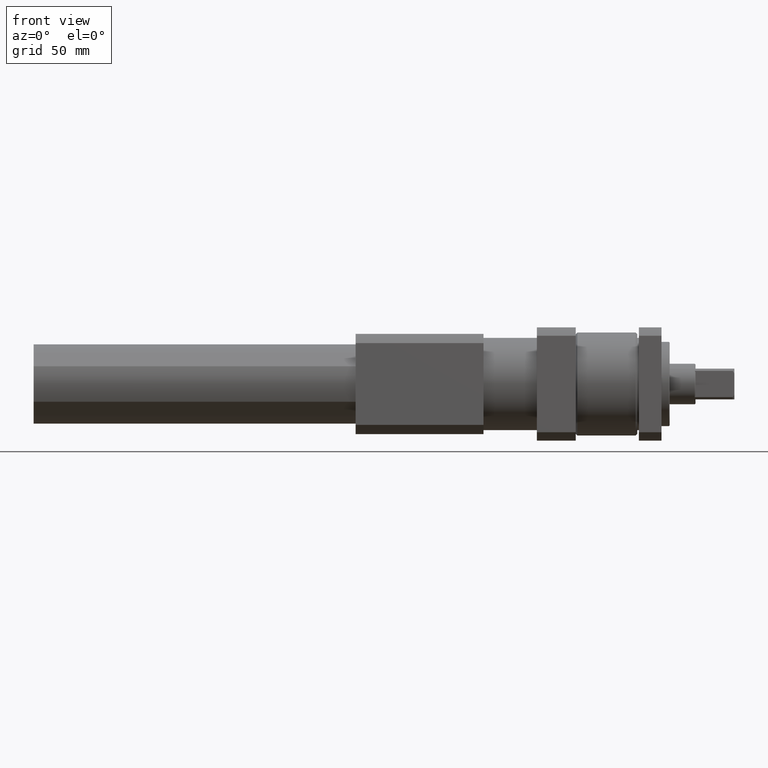
[diagram: clean part render]
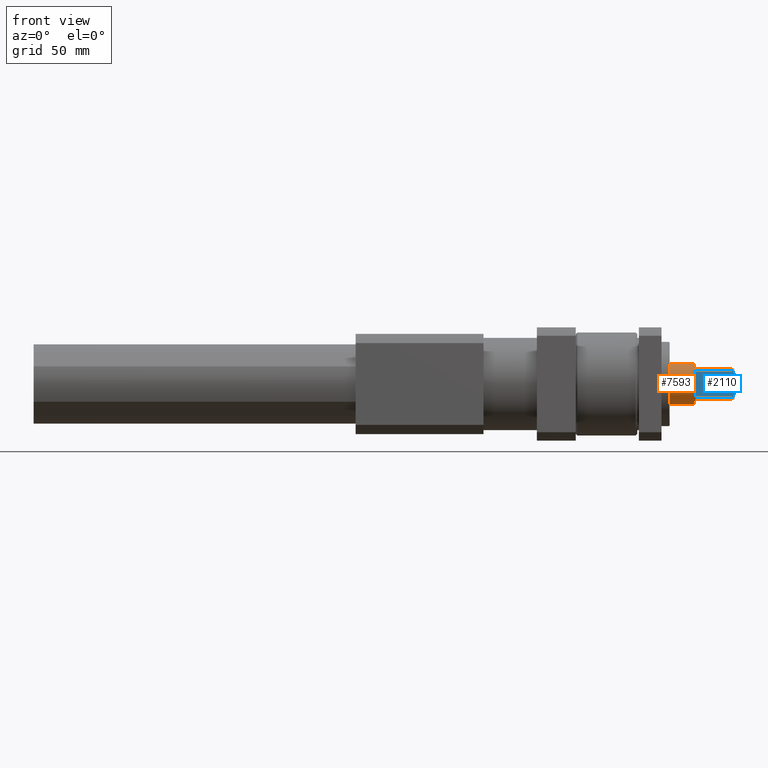
[diagram: same view with the hole feature highlighted: cylindrical wall and planar end face, labeled with their STEP entity ids]
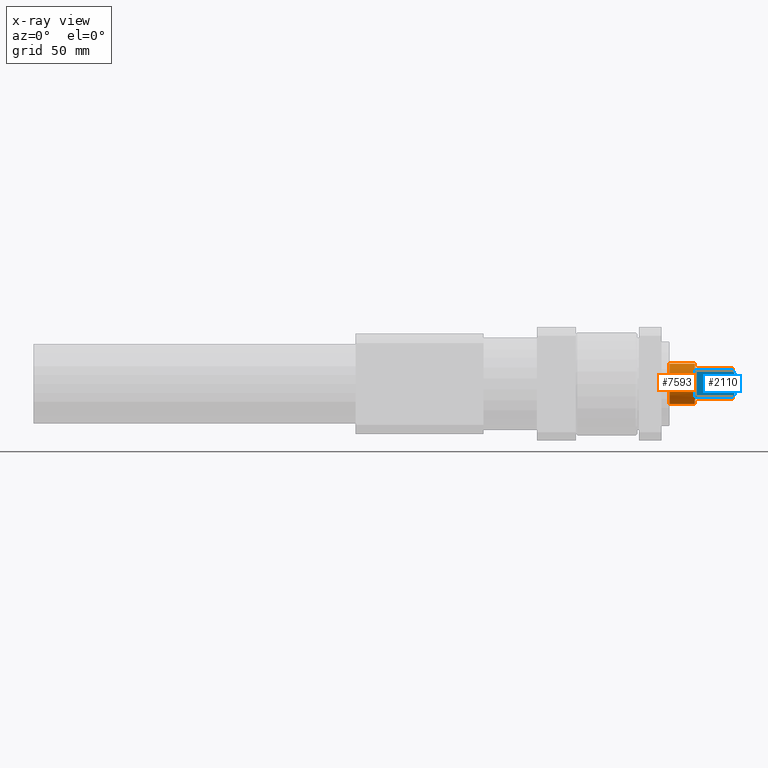
[diagram: x-ray of the same camera — body ghosted, the hole faces saturated]
A machine part, front view. The highlighted faces form one hole feature of diameter 25 mm: the cylindrical wall (entity #7593, orange) and its adjacent planar end face (entity #2110, blue) — they share a circular edge in the B-rep.
The next image is the same camera in x-ray (body ghosted, the hole faces saturated) — the bore reads through the body.
Wall:
#142 = EDGE_CURVE ( 'NONE', #292, #2497, #6185, .T. ) ;
#158 = VECTOR ( 'NONE', #6506, 1000.000000000000000 ) ;
#292 = VERTEX_POINT ( 'NONE', #5202 ) ;
#623 = DIRECTION ( 'NONE',  ( -1.000000000000000000, -0.0000000000000000000, -0.0000000000000000000 ) ) ;
#646 = VERTEX_POINT ( 'NONE', #2017 ) ;
#655 = VERTEX_POINT ( 'NONE', #2545 ) ;
#664 = VECTOR ( 'NONE', #3535, 1000.000000000000000 ) ;
#718 = DIRECTION ( 'NONE',  ( -1.000000000000000000, 0.0000000000000000000, 0.0000000000000000000 ) ) ;
#749 = CARTESIAN_POINT ( 'NONE',  ( 45.00000000000000000, -9.500000000000001800, -8.124038404635960800 ) ) ;
#835 = DIRECTION ( 'NONE',  ( 1.000000000000000000, 0.0000000000000000000, 0.0000000000000000000 ) ) ;
#942 = EDGE_CURVE ( 'NONE', #4511, #8318, #2438, .T. ) ;
#949 = CARTESIAN_POINT ( 'NONE',  ( 20.49999999999999600, 0.0000000000000000000, 0.0000000000000000000 ) ) ;
#966 = DIRECTION ( 'NONE',  ( 0.0000000000000000000, 0.0000000000000000000, 1.000000000000000000 ) ) ;
#1049 = CARTESIAN_POINT ( 'NONE',  ( 43.99999999999998600, 8.124038404635964400, -9.499999999999998200 ) ) ;
#1133 = VECTOR ( 'NONE', #1968, 1000.000000000000000 ) ;
#1153 = EDGE_CURVE ( 'NONE', #4511, #8444, #4828, .T. ) ;
#1162 = EDGE_CURVE ( 'NONE', #8035, #4754, #6686, .T. ) ;
#1287 = CARTESIAN_POINT ( 'NONE',  ( 43.99999999999998600, 0.0000000000000000000, 0.0000000000000000000 ) ) ;
#1300 = DIRECTION ( 'NONE',  ( -1.000000000000000000, 0.0000000000000000000, 0.0000000000000000000 ) ) ;
#1342 = CARTESIAN_POINT ( 'NONE',  ( 20.49999999999999600, -9.500000000000001800, -8.124038404635960800 ) ) ;
#1514 = EDGE_CURVE ( 'NONE', #2526, #2497, #2428, .T. ) ;
#1530 = CIRCLE ( 'NONE', #6971, 12.50000000000000000 ) ;
#1539 = CARTESIAN_POINT ( 'NONE',  ( 20.49999999999999600, 0.0000000000000000000, 0.0000000000000000000 ) ) ;
#1579 = CARTESIAN_POINT ( 'NONE',  ( 43.99999999999998600, 9.499999999999998200, -8.124038404635966200 ) ) ;
#1627 = LINE ( 'NONE', #6226, #4880 ) ;
#1640 = DIRECTION ( 'NONE',  ( 0.0000000000000000000, 0.0000000000000000000, -1.000000000000000000 ) ) ;
#1739 = CARTESIAN_POINT ( 'NONE',  ( 43.99999999999998600, -8.124038404635960800, 9.500000000000001800 ) ) ;
#1751 = ORIENTED_EDGE ( 'NONE', *, *, #6954, .F. ) ;
#1774 = AXIS2_PLACEMENT_3D ( 'NONE', #1287, #6168, #1984 ) ;
#1793 = ORIENTED_EDGE ( 'NONE', *, *, #2043, .T. ) ;
#1897 = ORIENTED_EDGE ( 'NONE', *, *, #8077, .T. ) ;
#1968 = DIRECTION ( 'NONE',  ( 1.000000000000000000, 0.0000000000000000000, 0.0000000000000000000 ) ) ;
#1984 = DIRECTION ( 'NONE',  ( 0.0000000000000000000, 0.0000000000000000000, -1.000000000000000000 ) ) ;
#2005 = DIRECTION ( 'NONE',  ( -1.000000000000000000, 0.0000000000000000000, 0.0000000000000000000 ) ) ;
#2009 = ORIENTED_EDGE ( 'NONE', *, *, #5088, .T. ) ;
#2017 = CARTESIAN_POINT ( 'NONE',  ( 20.49999999999999600, 8.124038404635964400, -9.499999999999998200 ) ) ;
#2043 = EDGE_CURVE ( 'NONE', #292, #5955, #8213, .T. ) ;
#2051 = ORIENTED_EDGE ( 'NONE', *, *, #142, .F. ) ;
#2060 = VECTOR ( 'NONE', #835, 1000.000000000000000 ) ;
#2192 = CARTESIAN_POINT ( 'NONE',  ( 20.49999999999999600, 8.124038404635960800, 9.500000000000001800 ) ) ;
#2220 = DIRECTION ( 'NONE',  ( 1.000000000000000000, 0.0000000000000000000, 0.0000000000000000000 ) ) ;
#2223 = DIRECTION ( 'NONE',  ( 0.0000000000000000000, 0.0000000000000000000, -1.000000000000000000 ) ) ;
#2287 = CIRCLE ( 'NONE', #6620, 12.50000000000000000 ) ;
#2354 = DIRECTION ( 'NONE',  ( -1.000000000000000000, -0.0000000000000000000, -0.0000000000000000000 ) ) ;
#2428 = CIRCLE ( 'NONE', #6736, 12.50000000000000000 ) ;
#2438 = LINE ( 'NONE', #5517, #158 ) ;
#2497 = VERTEX_POINT ( 'NONE', #1739 ) ;
#2526 = VERTEX_POINT ( 'NONE', #7324 ) ;
#2545 = CARTESIAN_POINT ( 'NONE',  ( 20.49999999999999600, -8.124038404635960800, -9.500000000000001800 ) ) ;
#2718 = DIRECTION ( 'NONE',  ( 0.0000000000000000000, 0.0000000000000000000, -1.000000000000000000 ) ) ;
#2814 = DIRECTION ( 'NONE',  ( 0.0000000000000000000, 1.776356839400250500E-015, -1.000000000000000000 ) ) ;
#2905 = CARTESIAN_POINT ( 'NONE',  ( 5.000000000000000000, 0.0000000000000000000, -12.50000000000000000 ) ) ;
#2941 = DIRECTION ( 'NONE',  ( 1.000000000000000000, 0.0000000000000000000, 0.0000000000000000000 ) ) ;
#3174 = ORIENTED_EDGE ( 'NONE', *, *, #7081, .F. ) ;
#3199 = VERTEX_POINT ( 'NONE', #7893 ) ;
#3468 = DIRECTION ( 'NONE',  ( -1.000000000000000000, 0.0000000000000000000, 0.0000000000000000000 ) ) ;
#3514 = ORIENTED_EDGE ( 'NONE', *, *, #8670, .T. ) ;
#3535 = DIRECTION ( 'NONE',  ( 1.000000000000000000, 0.0000000000000000000, 0.0000000000000000000 ) ) ;
#3613 = AXIS2_PLACEMENT_3D ( 'NONE', #4377, #1300, #5251 ) ;
#3675 = EDGE_CURVE ( 'NONE', #646, #8444, #4349, .T. ) ;
#3770 = EDGE_CURVE ( 'NONE', #4651, #8517, #5787, .T. ) ;
#3871 = DIRECTION ( 'NONE',  ( -1.000000000000000000, 0.0000000000000000000, 0.0000000000000000000 ) ) ;
#3930 = CARTESIAN_POINT ( 'NONE',  ( 45.00000000000000000, -8.124038404635960800, 9.500000000000001800 ) ) ;
#3940 = ORIENTED_EDGE ( 'NONE', *, *, #1153, .T. ) ;
#4149 = CARTESIAN_POINT ( 'NONE',  ( 43.99999999999998600, 0.0000000000000000000, 0.0000000000000000000 ) ) ;
#4151 = ORIENTED_EDGE ( 'NONE', *, *, #942, .F. ) ;
#4187 = CARTESIAN_POINT ( 'NONE',  ( 20.49999999999999600, 0.0000000000000000000, 0.0000000000000000000 ) ) ;
#4349 = LINE ( 'NONE', #7748, #664 ) ;
#4368 = ORIENTED_EDGE ( 'NONE', *, *, #5620, .T. ) ;
#4377 = CARTESIAN_POINT ( 'NONE',  ( 43.99999999999998600, 0.0000000000000000000, 0.0000000000000000000 ) ) ;
#4380 = ORIENTED_EDGE ( 'NONE', *, *, #3770, .F. ) ;
#4389 = VERTEX_POINT ( 'NONE', #6359 ) ;
#4511 = VERTEX_POINT ( 'NONE', #1579 ) ;
#4532 = CIRCLE ( 'NONE', #1774, 12.50000000000000000 ) ;
#4539 = CIRCLE ( 'NONE', #8872, 12.50000000000000000 ) ;
#4598 = EDGE_LOOP ( 'NONE', ( #6930 ) ) ;
#4648 = CARTESIAN_POINT ( 'NONE',  ( 20.49999999999999600, 9.499999999999998200, 8.124038404635966200 ) ) ;
#4651 = VERTEX_POINT ( 'NONE', #4648 ) ;
#4735 = AXIS2_PLACEMENT_3D ( 'NONE', #1539, #6405, #2223 ) ;
#4754 = VERTEX_POINT ( 'NONE', #8266 ) ;
#4828 = CIRCLE ( 'NONE', #3613, 12.50000000000000000 ) ;
#4874 = CARTESIAN_POINT ( 'NONE',  ( 43.99999999999998600, 0.0000000000000000000, 0.0000000000000000000 ) ) ;
#4880 = VECTOR ( 'NONE', #6942, 1000.000000000000000 ) ;
#4985 = AXIS2_PLACEMENT_3D ( 'NONE', #4187, #3468, #2814 ) ;
#5042 = EDGE_LOOP ( 'NONE', ( #5984, #2009, #1751, #6147, #2051, #1793, #3174, #3514, #4380, #4368, #4151, #3940, #8842, #7750, #6941, #1897 ) ) ;
#5059 = CARTESIAN_POINT ( 'NONE',  ( 20.49999999999999600, 9.499999999999998200, -8.124038404635966200 ) ) ;
#5088 = EDGE_CURVE ( 'NONE', #8035, #3199, #1530, .T. ) ;
#5202 = CARTESIAN_POINT ( 'NONE',  ( 20.49999999999999600, -8.124038404635960800, 9.500000000000001800 ) ) ;
#5228 = AXIS2_PLACEMENT_3D ( 'NONE', #8090, #3871, #8791 ) ;
#5247 = CARTESIAN_POINT ( 'NONE',  ( 43.99999999999998600, 9.499999999999998200, 8.124038404635966200 ) ) ;
#5251 = DIRECTION ( 'NONE',  ( 0.0000000000000000000, -4.440892098500626200E-015, -1.000000000000000000 ) ) ;
#5286 = VERTEX_POINT ( 'NONE', #2905 ) ;
#5486 = CARTESIAN_POINT ( 'NONE',  ( 45.00000000000000000, -8.124038404635960800, -9.500000000000001800 ) ) ;
#5517 = CARTESIAN_POINT ( 'NONE',  ( 45.00000000000000000, 9.499999999999998200, -8.124038404635966200 ) ) ;
#5573 = DIRECTION ( 'NONE',  ( 0.0000000000000000000, 0.0000000000000000000, -1.000000000000000000 ) ) ;
#5620 = EDGE_CURVE ( 'NONE', #4651, #8318, #5793, .T. ) ;
#5662 = EDGE_CURVE ( 'NONE', #5286, #5286, #2287, .T. ) ;
#5787 = LINE ( 'NONE', #7057, #2060 ) ;
#5793 = CIRCLE ( 'NONE', #4735, 12.50000000000000000 ) ;
#5824 = DIRECTION ( 'NONE',  ( -1.000000000000000000, 0.0000000000000000000, 0.0000000000000000000 ) ) ;
#5846 = CARTESIAN_POINT ( 'NONE',  ( 45.00000000000000000, 0.0000000000000000000, 0.0000000000000000000 ) ) ;
#5955 = VERTEX_POINT ( 'NONE', #2192 ) ;
#5984 = ORIENTED_EDGE ( 'NONE', *, *, #1162, .F. ) ;
#6147 = ORIENTED_EDGE ( 'NONE', *, *, #1514, .T. ) ;
#6168 = DIRECTION ( 'NONE',  ( -1.000000000000000000, 0.0000000000000000000, 0.0000000000000000000 ) ) ;
#6185 = LINE ( 'NONE', #3930, #7389 ) ;
#6226 = CARTESIAN_POINT ( 'NONE',  ( 45.00000000000000000, 8.124038404635960800, 9.500000000000001800 ) ) ;
#6359 = CARTESIAN_POINT ( 'NONE',  ( 43.99999999999998600, 8.124038404635960800, 9.500000000000001800 ) ) ;
#6405 = DIRECTION ( 'NONE',  ( -1.000000000000000000, 0.0000000000000000000, 0.0000000000000000000 ) ) ;
#6506 = DIRECTION ( 'NONE',  ( -1.000000000000000000, -0.0000000000000000000, -0.0000000000000000000 ) ) ;
#6620 = AXIS2_PLACEMENT_3D ( 'NONE', #7153, #2941, #7853 ) ;
#6686 = LINE ( 'NONE', #749, #1133 ) ;
#6697 = DIRECTION ( 'NONE',  ( -1.000000000000000000, -0.0000000000000000000, -0.0000000000000000000 ) ) ;
#6722 = CARTESIAN_POINT ( 'NONE',  ( 45.00000000000000000, -9.500000000000001800, 8.124038404635960800 ) ) ;
#6736 = AXIS2_PLACEMENT_3D ( 'NONE', #4149, #2005, #2718 ) ;
#6930 = ORIENTED_EDGE ( 'NONE', *, *, #5662, .T. ) ;
#6941 = ORIENTED_EDGE ( 'NONE', *, *, #8022, .F. ) ;
#6942 = DIRECTION ( 'NONE',  ( -1.000000000000000000, -0.0000000000000000000, -0.0000000000000000000 ) ) ;
#6954 = EDGE_CURVE ( 'NONE', #2526, #3199, #7626, .T. ) ;
#6971 = AXIS2_PLACEMENT_3D ( 'NONE', #949, #5824, #1640 ) ;
#7057 = CARTESIAN_POINT ( 'NONE',  ( 45.00000000000000000, 9.499999999999998200, 8.124038404635966200 ) ) ;
#7068 = VECTOR ( 'NONE', #623, 1000.000000000000000 ) ;
#7081 = EDGE_CURVE ( 'NONE', #4389, #5955, #1627, .T. ) ;
#7153 = CARTESIAN_POINT ( 'NONE',  ( 5.000000000000000000, 0.0000000000000000000, 0.0000000000000000000 ) ) ;
#7324 = CARTESIAN_POINT ( 'NONE',  ( 43.99999999999998600, -9.500000000000001800, 8.124038404635960800 ) ) ;
#7389 = VECTOR ( 'NONE', #2220, 1000.000000000000000 ) ;
#7438 = VERTEX_POINT ( 'NONE', #7934 ) ;
#7593 = ADVANCED_FACE ( 'NONE', ( #9052, #7618 ), #8826, .T. ) ;
#7618 = FACE_OUTER_BOUND ( 'NONE', #5042, .T. ) ;
#7626 = LINE ( 'NONE', #6722, #7852 ) ;
#7631 = AXIS2_PLACEMENT_3D ( 'NONE', #5846, #2354, #966 ) ;
#7748 = CARTESIAN_POINT ( 'NONE',  ( 45.00000000000000000, 8.124038404635964400, -9.499999999999998200 ) ) ;
#7750 = ORIENTED_EDGE ( 'NONE', *, *, #8529, .T. ) ;
#7852 = VECTOR ( 'NONE', #6697, 1000.000000000000000 ) ;
#7853 = DIRECTION ( 'NONE',  ( 0.0000000000000000000, 0.0000000000000000000, -1.000000000000000000 ) ) ;
#7893 = CARTESIAN_POINT ( 'NONE',  ( 20.49999999999999600, -9.500000000000001800, 8.124038404635960800 ) ) ;
#7934 = CARTESIAN_POINT ( 'NONE',  ( 43.99999999999998600, -8.124038404635960800, -9.500000000000001800 ) ) ;
#8022 = EDGE_CURVE ( 'NONE', #7438, #655, #8720, .T. ) ;
#8035 = VERTEX_POINT ( 'NONE', #1342 ) ;
#8077 = EDGE_CURVE ( 'NONE', #7438, #4754, #4539, .T. ) ;
#8090 = CARTESIAN_POINT ( 'NONE',  ( 20.49999999999999600, 0.0000000000000000000, 0.0000000000000000000 ) ) ;
#8213 = CIRCLE ( 'NONE', #4985, 12.50000000000000000 ) ;
#8266 = CARTESIAN_POINT ( 'NONE',  ( 43.99999999999998600, -9.500000000000001800, -8.124038404635960800 ) ) ;
#8318 = VERTEX_POINT ( 'NONE', #5059 ) ;
#8444 = VERTEX_POINT ( 'NONE', #1049 ) ;
#8517 = VERTEX_POINT ( 'NONE', #5247 ) ;
#8529 = EDGE_CURVE ( 'NONE', #646, #655, #8922, .T. ) ;
#8670 = EDGE_CURVE ( 'NONE', #4389, #8517, #4532, .T. ) ;
#8720 = LINE ( 'NONE', #5486, #7068 ) ;
#8791 = DIRECTION ( 'NONE',  ( 0.0000000000000000000, 0.0000000000000000000, -1.000000000000000000 ) ) ;
#8826 = CYLINDRICAL_SURFACE ( 'NONE', #7631, 12.50000000000000000 ) ;
#8842 = ORIENTED_EDGE ( 'NONE', *, *, #3675, .F. ) ;
#8872 = AXIS2_PLACEMENT_3D ( 'NONE', #4874, #718, #5573 ) ;
#8922 = CIRCLE ( 'NONE', #5228, 12.50000000000000000 ) ;
#9052 = FACE_OUTER_BOUND ( 'NONE', #4598, .T. ) ;
End face:
#61 = ORIENTED_EDGE ( 'NONE', *, *, #419, .F. ) ;
#374 = CARTESIAN_POINT ( 'NONE',  ( 45.00000000000000000, -9.500000000000001800, 6.480740698407839100 ) ) ;
#386 = LINE ( 'NONE', #1684, #5292 ) ;
#419 = EDGE_CURVE ( 'NONE', #2531, #1195, #386, .T. ) ;
#451 = CARTESIAN_POINT ( 'NONE',  ( 44.68489063187587400, -9.500000000000001800, -7.039898656126723600 ) ) ;
#606 = CARTESIAN_POINT ( 'NONE',  ( 20.99999999999999600, -9.500000000000001800, -7.331439149307594300 ) ) ;
#749 = CARTESIAN_POINT ( 'NONE',  ( 45.00000000000000000, -9.500000000000001800, -8.124038404635960800 ) ) ;
#940 = B_SPLINE_CURVE_WITH_KNOTS ( 'NONE', 3,
 ( #6880, #1997, #3373, #8292 ),
 .UNSPECIFIED., .F., .F.,
 ( 4, 4 ),
 ( 0.0000000000000000000, 0.0009371305029434697400 ),
 .UNSPECIFIED. ) ;
#988 = EDGE_CURVE ( 'NONE', #1195, #4754, #6842, .T. ) ;
#1133 = VECTOR ( 'NONE', #1968, 1000.000000000000000 ) ;
#1162 = EDGE_CURVE ( 'NONE', #8035, #4754, #6686, .T. ) ;
#1195 = VERTEX_POINT ( 'NONE', #5310 ) ;
#1342 = CARTESIAN_POINT ( 'NONE',  ( 20.49999999999999600, -9.500000000000001800, -8.124038404635960800 ) ) ;
#1368 = CARTESIAN_POINT ( 'NONE',  ( 20.99999999999999600, -9.500000000000001800, 7.331439149307594300 ) ) ;
#1389 = EDGE_CURVE ( 'NONE', #3066, #8035, #2645, .T. ) ;
#1674 = CARTESIAN_POINT ( 'NONE',  ( 20.83712496312332300, -9.500000000000001800, -7.598030796965841400 ) ) ;
#1684 = CARTESIAN_POINT ( 'NONE',  ( 45.00000000000000000, -9.500000000000001800, 9.500000000000001800 ) ) ;
#1808 = EDGE_CURVE ( 'NONE', #2526, #2531, #7514, .T. ) ;
#1968 = DIRECTION ( 'NONE',  ( 1.000000000000000000, 0.0000000000000000000, 0.0000000000000000000 ) ) ;
#1997 = CARTESIAN_POINT ( 'NONE',  ( 20.67024316772480900, -9.500000000000001800, 7.862094837832319000 ) ) ;
#2061 = CARTESIAN_POINT ( 'NONE',  ( 44.34945560562017900, -9.500000000000001800, -7.586350760550011800 ) ) ;
#2110 = ADVANCED_FACE ( 'NONE', ( #7769 ), #4424, .T. ) ;
#2266 = CARTESIAN_POINT ( 'NONE',  ( 45.00000000000000000, -9.500000000000001800, -6.480740698407838200 ) ) ;
#2300 = CARTESIAN_POINT ( 'NONE',  ( 20.67024316772481300, -9.500000000000001800, -7.862094837832320800 ) ) ;
#2325 = DIRECTION ( 'NONE',  ( 0.0000000000000000000, 0.0000000000000000000, -1.000000000000000000 ) ) ;
#2347 = ORIENTED_EDGE ( 'NONE', *, *, #6954, .T. ) ;
#2389 = DIRECTION ( 'NONE',  ( 0.0000000000000000000, 0.0000000000000000000, -1.000000000000000000 ) ) ;
#2526 = VERTEX_POINT ( 'NONE', #7324 ) ;
#2531 = VERTEX_POINT ( 'NONE', #374 ) ;
#2645 = B_SPLINE_CURVE_WITH_KNOTS ( 'NONE', 3,
 ( #2727, #1674, #2300, #3273 ),
 .UNSPECIFIED., .F., .F.,
 ( 4, 4 ),
 ( 0.0000000000000000000, 0.0009371305029434693100 ),
 .UNSPECIFIED. ) ;
#2727 = CARTESIAN_POINT ( 'NONE',  ( 20.99999999999999600, -9.500000000000001800, -7.331439149307594300 ) ) ;
#2775 = LINE ( 'NONE', #4538, #6514 ) ;
#3066 = VERTEX_POINT ( 'NONE', #606 ) ;
#3199 = VERTEX_POINT ( 'NONE', #7893 ) ;
#3273 = CARTESIAN_POINT ( 'NONE',  ( 20.49999999999999600, -9.500000000000001800, -8.124038404635960800 ) ) ;
#3373 = CARTESIAN_POINT ( 'NONE',  ( 20.83712496312333000, -9.500000000000001800, 7.598030796965845800 ) ) ;
#3456 = CARTESIAN_POINT ( 'NONE',  ( 43.99999999999998600, -9.500000000000001800, -8.124038404635960800 ) ) ;
#3488 = EDGE_LOOP ( 'NONE', ( #2347, #4523, #6890, #8931, #4731, #8823, #61, #7237 ) ) ;
#3879 = CARTESIAN_POINT ( 'NONE',  ( 20.99999999999999600, -9.500000000000001800, 9.500000000000001800 ) ) ;
#4424 = PLANE ( 'NONE',  #8274 ) ;
#4523 = ORIENTED_EDGE ( 'NONE', *, *, #4766, .T. ) ;
#4538 = CARTESIAN_POINT ( 'NONE',  ( 20.99999999999999600, -9.500000000000001800, 9.500000000000001800 ) ) ;
#4547 = CARTESIAN_POINT ( 'NONE',  ( 43.99999999999998600, -9.500000000000001800, 8.124038404635960800 ) ) ;
#4731 = ORIENTED_EDGE ( 'NONE', *, *, #1162, .T. ) ;
#4754 = VERTEX_POINT ( 'NONE', #8266 ) ;
#4766 = EDGE_CURVE ( 'NONE', #3199, #4825, #940, .T. ) ;
#4825 = VERTEX_POINT ( 'NONE', #1368 ) ;
#5292 = VECTOR ( 'NONE', #2389, 1000.000000000000000 ) ;
#5310 = CARTESIAN_POINT ( 'NONE',  ( 45.00000000000000000, -9.500000000000001800, -6.480740698407838200 ) ) ;
#6268 = CARTESIAN_POINT ( 'NONE',  ( 44.34885021166005700, -9.500000000000001800, 7.587282246114778400 ) ) ;
#6514 = VECTOR ( 'NONE', #7658, 1000.000000000000000 ) ;
#6686 = LINE ( 'NONE', #749, #1133 ) ;
#6697 = DIRECTION ( 'NONE',  ( -1.000000000000000000, -0.0000000000000000000, -0.0000000000000000000 ) ) ;
#6722 = CARTESIAN_POINT ( 'NONE',  ( 45.00000000000000000, -9.500000000000001800, 8.124038404635960800 ) ) ;
#6842 = B_SPLINE_CURVE_WITH_KNOTS ( 'NONE', 3,
 ( #2266, #451, #2061, #3456 ),
 .UNSPECIFIED., .F., .F.,
 ( 4, 4 ),
 ( 0.03219691360408252100, 0.03414043145091366600 ),
 .UNSPECIFIED. ) ;
#6880 = CARTESIAN_POINT ( 'NONE',  ( 20.49999999999999600, -9.500000000000001800, 8.124038404635960800 ) ) ;
#6890 = ORIENTED_EDGE ( 'NONE', *, *, #9009, .T. ) ;
#6954 = EDGE_CURVE ( 'NONE', #2526, #3199, #7626, .T. ) ;
#7237 = ORIENTED_EDGE ( 'NONE', *, *, #1808, .F. ) ;
#7324 = CARTESIAN_POINT ( 'NONE',  ( 43.99999999999998600, -9.500000000000001800, 8.124038404635960800 ) ) ;
#7501 = CARTESIAN_POINT ( 'NONE',  ( 45.00000000000000000, -9.500000000000001800, 6.480740698407839100 ) ) ;
#7514 = B_SPLINE_CURVE_WITH_KNOTS ( 'NONE', 3,
 ( #4547, #6268, #8851, #7501 ),
 .UNSPECIFIED., .F., .F.,
 ( 4, 4 ),
 ( 0.01655326815589146900, 0.01847546505119626900 ),
 .UNSPECIFIED. ) ;
#7626 = LINE ( 'NONE', #6722, #7852 ) ;
#7658 = DIRECTION ( 'NONE',  ( 0.0000000000000000000, 0.0000000000000000000, -1.000000000000000000 ) ) ;
#7769 = FACE_OUTER_BOUND ( 'NONE', #3488, .T. ) ;
#7852 = VECTOR ( 'NONE', #6697, 1000.000000000000000 ) ;
#7893 = CARTESIAN_POINT ( 'NONE',  ( 20.49999999999999600, -9.500000000000001800, 8.124038404635960800 ) ) ;
#8035 = VERTEX_POINT ( 'NONE', #1342 ) ;
#8266 = CARTESIAN_POINT ( 'NONE',  ( 43.99999999999998600, -9.500000000000001800, -8.124038404635960800 ) ) ;
#8274 = AXIS2_PLACEMENT_3D ( 'NONE', #3879, #8301, #2325 ) ;
#8292 = CARTESIAN_POINT ( 'NONE',  ( 20.99999999999999600, -9.500000000000001800, 7.331439149307594300 ) ) ;
#8301 = DIRECTION ( 'NONE',  ( 0.0000000000000000000, -1.000000000000000000, -0.0000000000000000000 ) ) ;
#8823 = ORIENTED_EDGE ( 'NONE', *, *, #988, .F. ) ;
#8851 = CARTESIAN_POINT ( 'NONE',  ( 44.68427129093023400, -9.500000000000001800, 7.040997669527556000 ) ) ;
#8931 = ORIENTED_EDGE ( 'NONE', *, *, #1389, .T. ) ;
#9009 = EDGE_CURVE ( 'NONE', #4825, #3066, #2775, .T. ) ;